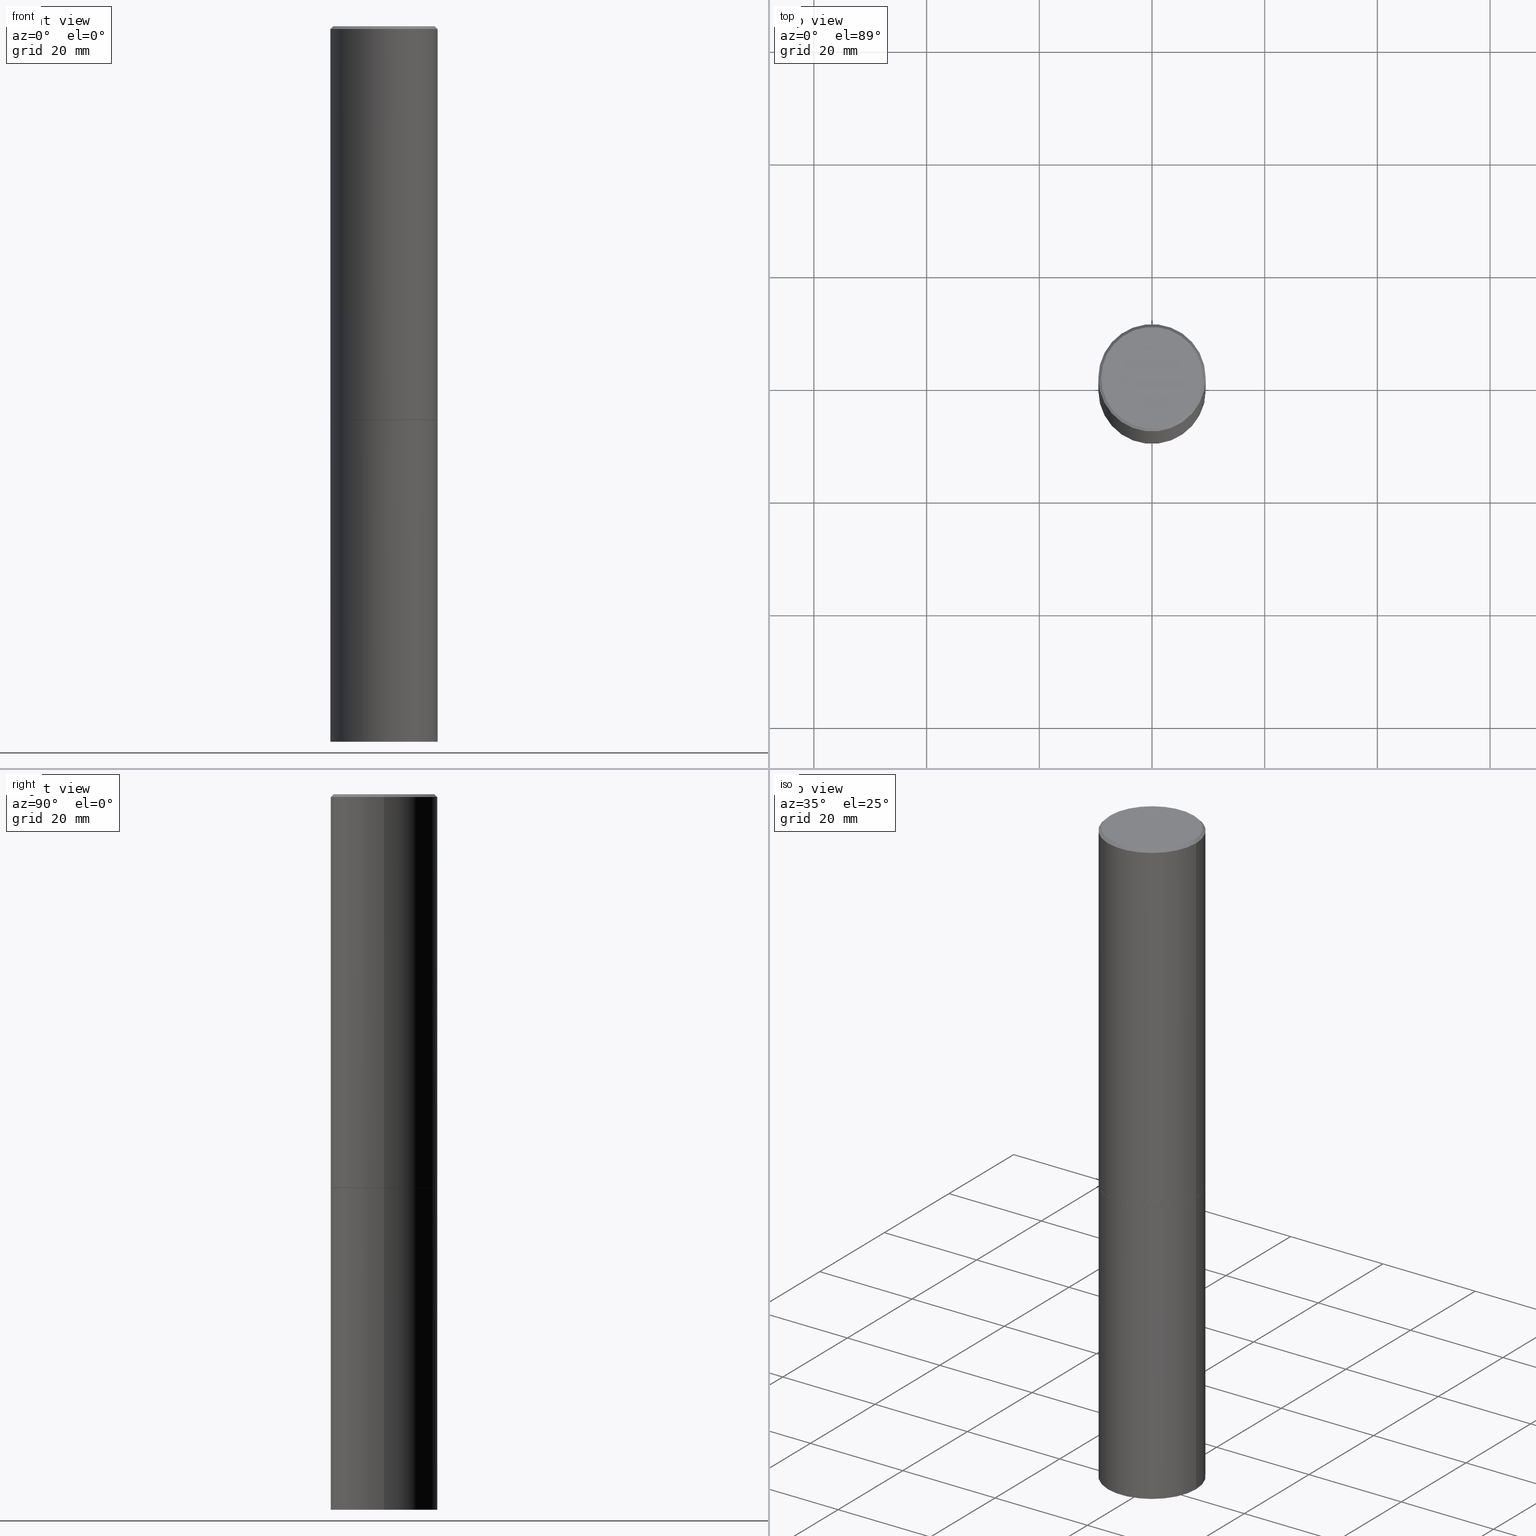
[diagram: canonical four-view strip — front | top / right | iso, engineering-drawing reading convention]
A machine part, canonical four-view strip (front | top / right | iso — engineering-drawing reading convention). The complete STEP part file that produces these views, byte-faithful:
ISO-10303-21;
HEADER;
FILE_DESCRIPTION (( 'STEP AP203' ),
    '1' );
FILE_NAME ('31818.STEP',
    '2024-02-27T13:42:31',
    ( '' ),
    ( '' ),
    'SwSTEP 2.0',
    'SolidWorks 2023',
    '' );
FILE_SCHEMA (( 'CONFIG_CONTROL_DESIGN' ));
ENDSEC;

DATA;
#1 = ADVANCED_FACE ( 'NONE', ( #116 ), #283, .F. ) ;
#2 = PLANE ( 'NONE',  #184 ) ;
#3 = DIRECTION ( 'NONE',  ( -2.445468806185136597E-29, 3.491481338843145583E-15, 1.000000000000000000 ) ) ;
#4 = AXIS2_PLACEMENT_3D ( 'NONE', #246, #24, #251 ) ;
#5 = DIRECTION ( 'NONE',  ( 1.000000000000000000, -6.982962677686265922E-15, 4.876176775795935793E-29 ) ) ;
#6 = CALENDAR_DATE ( 2024, 27, 2 ) ;
#7 = ADVANCED_FACE ( 'NONE', ( #58 ), #148, .T. ) ;
#8 = APPLICATION_PROTOCOL_DEFINITION ( 'international standard', 'config_control_design', 1994, #314 ) ;
#9 = APPROVAL_PERSON_ORGANIZATION ( #200, #166, #60 ) ;
#10 = ADVANCED_FACE ( 'NONE', ( #303 ), #55, .F. ) ;
#11 = DIRECTION ( 'NONE',  ( 1.000000000000000000, -6.982962677686269077E-15, 0.000000000000000000 ) ) ;
#12 = ORIENTED_EDGE ( 'NONE', *, *, #151, .T. ) ;
#13 = ADVANCED_FACE ( 'NONE', ( #170 ), #2, .T. ) ;
#14 = DIRECTION ( 'NONE',  ( 0.7071067811865469066, -7.319954787623254468E-15, -0.7071067811865481278 ) ) ;
#15 = ORIENTED_EDGE ( 'NONE', *, *, #299, .T. ) ;
#16 = DIRECTION ( 'NONE',  ( 1.000000000000000000, -6.982962677686265922E-15, 4.876176775795935793E-29 ) ) ;
#17 = EDGE_LOOP ( 'NONE', ( #152, #223, #12, #275 ) ) ;
#18 = CLOSED_SHELL ( 'NONE', ( #23, #350, #130, #7, #310, #62, #47, #10 ) ) ;
#19 = LINE ( 'NONE', #241, #32 ) ;
#20 = APPROVAL_DATE_TIME ( #272, #230 ) ;
#21 = VERTEX_POINT ( 'NONE', #305 ) ;
#22 = CARTESIAN_POINT ( 'NONE',  ( 6.722593748202941159E-29, -9.598082200479808430E-15, -2.749000000000000110 ) ) ;
#23 = ADVANCED_FACE ( 'NONE', ( #85 ), #171, .T. ) ;
#24 = DIRECTION ( 'NONE',  ( -2.445468806185136597E-29, 3.491481338843145583E-15, 1.000000000000000000 ) ) ;
#25 = ORIENTED_EDGE ( 'NONE', *, *, #147, .F. ) ;
#26 = CARTESIAN_POINT ( 'NONE',  ( -0.3749999999999999445, -2.169420654527958195E-15, -2.749000000000000110 ) ) ;
#27 = AXIS2_PLACEMENT_3D ( 'NONE', #365, #221, #333 ) ;
#28 = DIRECTION ( 'NONE',  ( 2.438088387897960049E-29, -3.491481338843145188E-15, -1.000000000000000000 ) ) ;
#29 = CARTESIAN_POINT ( 'NONE',  ( 0.3750000000000000555, -1.222018468595100145E-14, -2.750000000000000000 ) ) ;
#30 = DIRECTION ( 'NONE',  ( -1.000000000000000000, 6.982962677686265922E-15, -4.876176775795935793E-29 ) ) ;
#31 = CARTESIAN_POINT ( 'NONE',  ( 0.000000000000000000, 0.000000000000000000, 0.000000000000000000 ) ) ;
#32 = VECTOR ( 'NONE', #79, 39.37007874015748143 ) ;
#33 = LOCAL_TIME ( 8, 42, 31.00000000000000000, #167 ) ;
#34 =( CONVERSION_BASED_UNIT ( 'INCH', #127 ) LENGTH_UNIT ( ) NAMED_UNIT ( #135 ) );
#35 = DATE_AND_TIME ( #93, #178 ) ;
#36 = ORIENTED_EDGE ( 'NONE', *, *, #191, .T. ) ;
#37 = EDGE_CURVE ( 'NONE', #193, #129, #113, .T. ) ;
#38 = ORIENTED_EDGE ( 'NONE', *, *, #317, .F. ) ;
#39 = AXIS2_PLACEMENT_3D ( 'NONE', #282, #250, #279 ) ;
#40 = CC_DESIGN_APPROVAL ( #343, ( #219 ) ) ;
#41 = CARTESIAN_POINT ( 'NONE',  ( 6.725039217009124520E-29, -9.601573681818649859E-15, -2.750000000000000000 ) ) ;
#42 = EDGE_LOOP ( 'NONE', ( #359, #139, #327, #206 ) ) ;
#43 = CARTESIAN_POINT ( 'NONE',  ( 0.3749999999999998335, -2.618611004132348439E-15, 1.828566290923475082E-29 ) ) ;
#44 = CARTESIAN_POINT ( 'NONE',  ( 0.3749999999999996669, -2.642516375941185662E-15, -0.02000000000000008715 ) ) ;
#45 = VERTEX_POINT ( 'NONE', #308 ) ;
#46 = VECTOR ( 'NONE', #207, 39.37007874015748143 ) ;
#47 = ADVANCED_FACE ( 'NONE', ( #131 ), #358, .F. ) ;
#48 = CIRCLE ( 'NONE', #255, 0.3750000000000000555 ) ;
#49 = FACE_OUTER_BOUND ( 'NONE', #42, .T. ) ;
#50 = ORIENTED_EDGE ( 'NONE', *, *, #97, .T. ) ;
#51 = FACE_OUTER_BOUND ( 'NONE', #353, .T. ) ;
#52 = SHAPE_DEFINITION_REPRESENTATION ( #117, #302 ) ;
#53 = PERSON_AND_ORGANIZATION ( #309, #156 ) ;
#54 = DIRECTION ( 'NONE',  ( 1.000000000000000000, -6.982962677686265922E-15, 4.876176775795935793E-29 ) ) ;
#55 = PLANE ( 'NONE',  #180 ) ;
#56 = EDGE_CURVE ( 'NONE', #232, #217, #161, .T. ) ;
#57 = LOCAL_TIME ( 8, 42, 31.00000000000000000, #249 ) ;
#58 = FACE_OUTER_BOUND ( 'NONE', #134, .T. ) ;
#59 = DIRECTION ( 'NONE',  ( 1.000000000000000000, -6.982962677686265133E-15, 0.000000000000000000 ) ) ;
#60 = APPROVAL_ROLE ( '' ) ;
#61 = UNCERTAINTY_MEASURE_WITH_UNIT (LENGTH_MEASURE( 1.000000000000000082E-05 ), #34, 'distance_accuracy_value', 'NONE');
#62 = ADVANCED_FACE ( 'NONE', ( #49 ), #103, .T. ) ;
#63 = VECTOR ( 'NONE', #187, 39.37007874015748143 ) ;
#64 = CONICAL_SURFACE ( 'NONE', #271, 0.3749999999999996669, 0.7853981633974473908 ) ;
#65 = EDGE_CURVE ( 'NONE', #45, #217, #234, .T. ) ;
#66 = EDGE_LOOP ( 'NONE', ( #111, #356 ) ) ;
#67 = CARTESIAN_POINT ( 'NONE',  ( 1.222734403092568523E-28, -1.745740669421572989E-14, -5.000000000000000000 ) ) ;
#68 = ORIENTED_EDGE ( 'NONE', *, *, #75, .F. ) ;
#69 = AXIS2_PLACEMENT_3D ( 'NONE', #336, #169, #59 ) ;
#70 = DIRECTION ( 'NONE',  ( 1.000000000000000000, -6.982962677686266711E-15, 0.000000000000000000 ) ) ;
#71 = APPROVAL_STATUS ( 'not_yet_approved' ) ;
#72 = ORIENTED_EDGE ( 'NONE', *, *, #216, .F. ) ;
#73 = CARTESIAN_POINT ( 'NONE',  ( -0.3739999999999999991, -6.944143850075873593E-15, -2.749999999999999556 ) ) ;
#74 = ORIENTED_EDGE ( 'NONE', *, *, #258, .F. ) ;
#75 = EDGE_CURVE ( 'NONE', #108, #232, #347, .T. ) ;
#76 = DIRECTION ( 'NONE',  ( -2.445468806185136597E-29, 3.491481338843145583E-15, 1.000000000000000000 ) ) ;
#77 = DATE_AND_TIME ( #263, #57 ) ;
#78 = EDGE_LOOP ( 'NONE', ( #136, #190 ) ) ;
#79 = DIRECTION ( 'NONE',  ( 0.7071067811867889352, -2.468850131084785360E-15, 0.7071067811863060992 ) ) ;
#80 = EDGE_LOOP ( 'NONE', ( #50, #265, #72, #235 ) ) ;
#81 = APPROVAL_DATE_TIME ( #35, #166 ) ;
#82 = CC_DESIGN_DATE_AND_TIME_ASSIGNMENT ( #239, #105, ( #96 ) ) ;
#83 = CARTESIAN_POINT ( 'NONE',  ( 4.890937612370294178E-31, -6.982962677686321191E-17, -0.02000000000000008715 ) ) ;
#84 = DIRECTION ( 'NONE',  ( -2.445468806185136597E-29, 3.491481338843145583E-15, 1.000000000000000000 ) ) ;
#85 = FACE_OUTER_BOUND ( 'NONE', #247, .T. ) ;
#86 = FACE_OUTER_BOUND ( 'NONE', #80, .T. ) ;
#87 = AXIS2_PLACEMENT_3D ( 'NONE', #338, #88, #198 ) ;
#88 = DIRECTION ( 'NONE',  ( -2.445468806185136597E-29, 3.491481338843145583E-15, 1.000000000000000000 ) ) ;
#89 = CARTESIAN_POINT ( 'NONE',  ( -0.3739999999999999991, -6.938845395727652768E-15, -2.749999999999999556 ) ) ;
#90 =( NAMED_UNIT ( * ) PLANE_ANGLE_UNIT ( ) SI_UNIT ( $, .RADIAN. ) );
#91 = ADVANCED_FACE ( 'NONE', ( #100 ), #357, .T. ) ;
#92 = AXIS2_PLACEMENT_3D ( 'NONE', #361, #118, #196 ) ;
#93 = CALENDAR_DATE ( 2024, 27, 2 ) ;
#94 = MANIFOLD_SOLID_BREP ( 'Body-Move/Copy2[1]', #339 ) ;
#95 = CIRCLE ( 'NONE', #163, 0.3749999999999996669 ) ;
#96 = SECURITY_CLASSIFICATION ( '', '', #324 ) ;
#97 = EDGE_CURVE ( 'NONE', #45, #329, #137, .T. ) ;
#98 = LINE ( 'NONE', #205, #154 ) ;
#99 = EDGE_LOOP ( 'NONE', ( #325, #277, #74, #173 ) ) ;
#100 = FACE_OUTER_BOUND ( 'NONE', #99, .T. ) ;
#101 = PERSON_AND_ORGANIZATION ( #309, #156 ) ;
#102 = EDGE_LOOP ( 'NONE', ( #158, #245 ) ) ;
#103 = CONICAL_SURFACE ( 'NONE', #286, 0.3739999999999999991, 0.7853981633977896726 ) ;
#104 = FACE_OUTER_BOUND ( 'NONE', #269, .T. ) ;
#105 = DATE_TIME_ROLE ( 'classification_date' ) ;
#106 = ORIENTED_EDGE ( 'NONE', *, *, #285, .F. ) ;
#107 = DIRECTION ( 'NONE',  ( -2.445468806185136597E-29, 3.491481338843145583E-15, 1.000000000000000000 ) ) ;
#108 = VERTEX_POINT ( 'NONE', #328 ) ;
#109 = CARTESIAN_POINT ( 'NONE',  ( -0.3749999999999996669, 2.548781377355484352E-15, -0.02000000000000008715 ) ) ;
#110 = PERSON_AND_ORGANIZATION ( #309, #156 ) ;
#111 = ORIENTED_EDGE ( 'NONE', *, *, #75, .T. ) ;
#112 = EDGE_CURVE ( 'NONE', #329, #132, #98, .T. ) ;
#113 = CIRCLE ( 'NONE', #87, 0.3750000000000000555 ) ;
#114 = AXIS2_PLACEMENT_3D ( 'NONE', #257, #121, #5 ) ;
#115 = LINE ( 'NONE', #199, #290 ) ;
#116 = FACE_OUTER_BOUND ( 'NONE', #78, .T. ) ;
#117 = PRODUCT_DEFINITION_SHAPE ( 'NONE', 'NONE',  #313 ) ;
#118 = DIRECTION ( 'NONE',  ( -2.445468806185136597E-29, 3.491481338843145583E-15, 1.000000000000000000 ) ) ;
#119 = CARTESIAN_POINT ( 'NONE',  ( 2.478951750578621842E-15, 0.3549999999999996492, -1.235207362799214833E-15 ) ) ;
#120 = DIRECTION ( 'NONE',  ( 1.000000000000000000, -6.982962677686265133E-15, 0.000000000000000000 ) ) ;
#121 = DIRECTION ( 'NONE',  ( -2.445468806185136597E-29, 3.491481338843145583E-15, 1.000000000000000000 ) ) ;
#122 = CIRCLE ( 'NONE', #315, 0.3750000000000000555 ) ;
#123 = EDGE_CURVE ( 'NONE', #193, #210, #295, .T. ) ;
#124 = FACE_OUTER_BOUND ( 'NONE', #17, .T. ) ;
#125 = PERSON_AND_ORGANIZATION ( #309, #156 ) ;
#126 =( LENGTH_UNIT ( ) NAMED_UNIT ( * ) SI_UNIT ( $, .METRE. ) );
#127 = LENGTH_MEASURE_WITH_UNIT ( LENGTH_MEASURE( 0.02539999999999999897 ), #126 );
#128 = AXIS2_PLACEMENT_3D ( 'NONE', #41, #293, #298 ) ;
#129 = VERTEX_POINT ( 'NONE', #243 ) ;
#130 = ADVANCED_FACE ( 'NONE', ( #104 ), #64, .T. ) ;
#131 = FACE_OUTER_BOUND ( 'NONE', #155, .T. ) ;
#132 = VERTEX_POINT ( 'NONE', #109 ) ;
#133 = CARTESIAN_POINT ( 'NONE',  ( 0.000000000000000000, 0.000000000000000000, 0.000000000000000000 ) ) ;
#134 = EDGE_LOOP ( 'NONE', ( #185, #68, #294, #15 ) ) ;
#135 = DIMENSIONAL_EXPONENTS ( 1.000000000000000000, 0.000000000000000000, 0.000000000000000000, 0.000000000000000000, 0.000000000000000000, 0.000000000000000000, 0.000000000000000000 ) ;
#136 = ORIENTED_EDGE ( 'NONE', *, *, #258, .T. ) ;
#137 = CIRCLE ( 'NONE', #225, 0.3749999999999999445 ) ;
#138 = DIRECTION ( 'NONE',  ( -1.000000000000000000, 6.982962677686266711E-15, 0.000000000000000000 ) ) ;
#139 = ORIENTED_EDGE ( 'NONE', *, *, #317, .T. ) ;
#140 = CARTESIAN_POINT ( 'NONE',  ( 4.890937612370294178E-31, -6.982962677686321191E-17, -0.02000000000000008715 ) ) ;
#141 = APPLICATION_PROTOCOL_DEFINITION ( 'international standard', 'config_control_design', 1994, #254 ) ;
#142 = DATE_TIME_ROLE ( 'creation_date' ) ;
#143 = DIRECTION ( 'NONE',  ( 1.000000000000000000, -6.982962677686266711E-15, 0.000000000000000000 ) ) ;
#144 = DIRECTION ( 'NONE',  ( 2.438088387897960049E-29, -3.491481338843145188E-15, -1.000000000000000000 ) ) ;
#145 = CARTESIAN_POINT ( 'NONE',  ( 6.725039217009124520E-29, -9.601573681818649859E-15, -2.750000000000000000 ) ) ;
#146 = CARTESIAN_POINT ( 'NONE',  ( 6.725039217009123399E-29, -9.601573681818648281E-15, -2.749999999999999556 ) ) ;
#147 = EDGE_CURVE ( 'NONE', #21, #45, #19, .T. ) ;
#148 = CONICAL_SURFACE ( 'NONE', #312, 0.3749999999999996669, 0.7853981633974473908 ) ;
#149 = CC_DESIGN_APPROVAL ( #230, ( #96 ) ) ;
#150 =( NAMED_UNIT ( * ) SI_UNIT ( $, .STERADIAN. ) SOLID_ANGLE_UNIT ( ) );
#151 = EDGE_CURVE ( 'NONE', #129, #349, #319, .T. ) ;
#152 = ORIENTED_EDGE ( 'NONE', *, *, #123, .F. ) ;
#153 = DIRECTION ( 'NONE',  ( 1.000000000000000000, -6.982962677686265133E-15, 0.000000000000000000 ) ) ;
#154 = VECTOR ( 'NONE', #354, 39.37007874015748143 ) ;
#155 = EDGE_LOOP ( 'NONE', ( #162, #38 ) ) ;
#156 = ORGANIZATION ( 'UNSPECIFIED', 'UNSPECIFIED', '' ) ;
#157 = CARTESIAN_POINT ( 'NONE',  ( -0.3750000000000000555, -1.086495492891681496E-14, -5.000000000000000000 ) ) ;
#158 = ORIENTED_EDGE ( 'NONE', *, *, #174, .F. ) ;
#159 = CC_DESIGN_PERSON_AND_ORGANIZATION_ASSIGNMENT ( #101, #209, ( #219 ) ) ;
#160 = DIRECTION ( 'NONE',  ( 1.000000000000000000, -6.982962677686265922E-15, 4.876231632511992667E-29 ) ) ;
#161 = LINE ( 'NONE', #44, #306 ) ;
#162 = ORIENTED_EDGE ( 'NONE', *, *, #346, .F. ) ;
#163 = AXIS2_PLACEMENT_3D ( 'NONE', #351, #321, #70 ) ;
#164 = CARTESIAN_POINT ( 'NONE',  ( -2.087702828670439639E-46, 2.980686340760894400E-32, 8.537024980200822558E-18 ) ) ;
#165 = DIRECTION ( 'NONE',  ( 1.000000000000000000, -6.982962677686265922E-15, 4.876176775795935793E-29 ) ) ;
#166 = APPROVAL ( #331, 'UNSPECIFIED' ) ;
#167 = COORDINATED_UNIVERSAL_TIME_OFFSET ( 5, 0, .BEHIND. ) ;
#168 = APPROVAL_STATUS ( 'not_yet_approved' ) ;
#169 = DIRECTION ( 'NONE',  ( -2.445468806185136597E-29, 3.491481338843145583E-15, 1.000000000000000000 ) ) ;
#170 = FACE_OUTER_BOUND ( 'NONE', #102, .T. ) ;
#171 = CONICAL_SURFACE ( 'NONE', #208, 0.3739999999999999991, 0.7853981633977896726 ) ;
#172 = CARTESIAN_POINT ( 'NONE',  ( 6.725039217009124520E-29, -9.601573681818649859E-15, -2.750000000000000000 ) ) ;
#173 = ORIENTED_EDGE ( 'NONE', *, *, #151, .F. ) ;
#174 = EDGE_CURVE ( 'NONE', #129, #193, #122, .T. ) ;
#175 = DIRECTION ( 'NONE',  ( -0.7071067811865469066, 2.468850131082250355E-15, -0.7071067811865481278 ) ) ;
#176 = PERSON_AND_ORGANIZATION ( #309, #156 ) ;
#177 = VECTOR ( 'NONE', #291, 39.37007874015748143 ) ;
#178 = LOCAL_TIME ( 8, 42, 31.00000000000000000, #344 ) ;
#179 = MECHANICAL_CONTEXT ( 'NONE', #314, 'mechanical' ) ;
#180 = AXIS2_PLACEMENT_3D ( 'NONE', #119, #28, #30 ) ;
#181 = PRODUCT_RELATED_PRODUCT_CATEGORY ( 'detail', '', ( #342 ) ) ;
#182 = ORIENTED_EDGE ( 'NONE', *, *, #299, .F. ) ;
#183 = DIRECTION ( 'NONE',  ( 1.000000000000000000, -6.982962677686266711E-15, 0.000000000000000000 ) ) ;
#184 = AXIS2_PLACEMENT_3D ( 'NONE', #280, #144, #335 ) ;
#185 = ORIENTED_EDGE ( 'NONE', *, *, #56, .F. ) ;
#186 = AXIS2_PLACEMENT_3D ( 'NONE', #311, #260, #261 ) ;
#187 = DIRECTION ( 'NONE',  ( -2.445468806185136877E-29, 3.491481338843145188E-15, 1.000000000000000000 ) ) ;
#188 = CARTESIAN_POINT ( 'NONE',  ( 0.3749999999999996669, -2.642516375941185662E-15, -0.02000000000000008715 ) ) ;
#189 = APPROVAL_ROLE ( '' ) ;
#190 = ORIENTED_EDGE ( 'NONE', *, *, #289, .T. ) ;
#191 = EDGE_CURVE ( 'NONE', #237, #329, #214, .T. ) ;
#192 = APPROVAL_DATE_TIME ( #77, #343 ) ;
#193 = VERTEX_POINT ( 'NONE', #157 ) ;
#194 = COORDINATED_UNIVERSAL_TIME_OFFSET ( 5, 0, .BEHIND. ) ;
#195 = DIRECTION ( 'NONE',  ( 2.445468806185136597E-29, -3.491481338843145583E-15, -1.000000000000000000 ) ) ;
#196 = DIRECTION ( 'NONE',  ( 1.000000000000000000, -6.982962677686265922E-15, 4.876231632511992667E-29 ) ) ;
#197 = CYLINDRICAL_SURFACE ( 'NONE', #114, 0.3749999999999998335 ) ;
#198 = DIRECTION ( 'NONE',  ( 1.000000000000000000, -6.982962677686266711E-15, 0.000000000000000000 ) ) ;
#199 = CARTESIAN_POINT ( 'NONE',  ( -0.3749999999999996669, 2.548781377355484352E-15, -0.02000000000000008715 ) ) ;
#200 = PERSON_AND_ORGANIZATION ( #309, #156 ) ;
#201 = CC_DESIGN_PERSON_AND_ORGANIZATION_ASSIGNMENT ( #244, #352, ( #219 ) ) ;
#202 = DIRECTION ( 'NONE',  ( -2.445468806185136597E-29, 3.491481338843145583E-15, 1.000000000000000000 ) ) ;
#203 = CIRCLE ( 'NONE', #4, 0.3749999999999999445 ) ;
#204 = AXIS2_PLACEMENT_3D ( 'NONE', #172, #276, #143 ) ;
#205 = CARTESIAN_POINT ( 'NONE',  ( -0.3749999999999998335, 2.664535259100374514E-15, -1.844600658845588757E-29 ) ) ;
#206 = ORIENTED_EDGE ( 'NONE', *, *, #222, .F. ) ;
#207 = DIRECTION ( 'NONE',  ( -2.445468806185136877E-29, 3.491481338843145188E-15, 1.000000000000000000 ) ) ;
#208 = AXIS2_PLACEMENT_3D ( 'NONE', #146, #252, #120 ) ;
#209 = PERSON_AND_ORGANIZATION_ROLE ( 'design_supplier' ) ;
#210 = VERTEX_POINT ( 'NONE', #236 ) ;
#211 = CC_DESIGN_SECURITY_CLASSIFICATION ( #96, ( #219 ) ) ;
#212 = CARTESIAN_POINT ( 'NONE',  ( 0.3750000000000000555, -2.618611004132350016E-15, 1.828566290923476203E-29 ) ) ;
#213 = PERSON_AND_ORGANIZATION ( #309, #156 ) ;
#214 = LINE ( 'NONE', #73, #177 ) ;
#215 = ORIENTED_EDGE ( 'NONE', *, *, #284, .F. ) ;
#216 = EDGE_CURVE ( 'NONE', #217, #132, #95, .T. ) ;
#217 = VERTEX_POINT ( 'NONE', #188 ) ;
#218 = AXIS2_PLACEMENT_3D ( 'NONE', #31, #253, #54 ) ;
#219 = PRODUCT_DEFINITION_FORMATION_WITH_SPECIFIED_SOURCE ( 'ANY', '', #342, .NOT_KNOWN. ) ;
#220 = CYLINDRICAL_SURFACE ( 'NONE', #218, 0.3749999999999998335 ) ;
#221 = DIRECTION ( 'NONE',  ( 2.438088387897960049E-29, -3.491481338843145188E-15, -1.000000000000000000 ) ) ;
#222 = EDGE_CURVE ( 'NONE', #329, #45, #203, .T. ) ;
#223 = ORIENTED_EDGE ( 'NONE', *, *, #37, .T. ) ;
#224 = DIRECTION ( 'NONE',  ( 1.000000000000000000, -6.982962677686265133E-15, 0.000000000000000000 ) ) ;
#225 = AXIS2_PLACEMENT_3D ( 'NONE', #22, #348, #11 ) ;
#226 = CYLINDRICAL_SURFACE ( 'NONE', #355, 0.3750000000000000555 ) ;
#227 = CC_DESIGN_PERSON_AND_ORGANIZATION_ASSIGNMENT ( #125, #228, ( #342 ) ) ;
#228 = PERSON_AND_ORGANIZATION_ROLE ( 'design_owner' ) ;
#229 = CIRCLE ( 'NONE', #69, 0.3739999999999999991 ) ;
#230 = APPROVAL ( #71, 'UNSPECIFIED' ) ;
#231 = CIRCLE ( 'NONE', #204, 0.3750000000000000555 ) ;
#232 = VERTEX_POINT ( 'NONE', #334 ) ;
#233 = CC_DESIGN_PERSON_AND_ORGANIZATION_ASSIGNMENT ( #176, #259, ( #313 ) ) ;
#234 = LINE ( 'NONE', #43, #63 ) ;
#235 = ORIENTED_EDGE ( 'NONE', *, *, #65, .F. ) ;
#236 = CARTESIAN_POINT ( 'NONE',  ( -0.3750000000000000555, -1.086495492891681496E-14, -2.750000000000000000 ) ) ;
#237 = VERTEX_POINT ( 'NONE', #89 ) ;
#238 = DIRECTION ( 'NONE',  ( -2.445468806185136597E-29, 3.491481338843145583E-15, 1.000000000000000000 ) ) ;
#239 = DATE_AND_TIME ( #266, #363 ) ;
#240 = ORIENTED_EDGE ( 'NONE', *, *, #222, .T. ) ;
#241 = CARTESIAN_POINT ( 'NONE',  ( 0.3739999999999999991, -1.221320172327331228E-14, -2.749999999999999556 ) ) ;
#242 = CC_DESIGN_PERSON_AND_ORGANIZATION_ASSIGNMENT ( #213, #332, ( #96 ) ) ;
#243 = CARTESIAN_POINT ( 'NONE',  ( 0.3750000000000000555, -2.007601769834807990E-14, -5.000000000000000000 ) ) ;
#244 = PERSON_AND_ORGANIZATION ( #309, #156 ) ;
#245 = ORIENTED_EDGE ( 'NONE', *, *, #37, .F. ) ;
#246 = CARTESIAN_POINT ( 'NONE',  ( 6.722593748202941159E-29, -9.598082200479808430E-15, -2.749000000000000110 ) ) ;
#247 = EDGE_LOOP ( 'NONE', ( #267, #36, #288, #25 ) ) ;
#248 = CIRCLE ( 'NONE', #345, 0.3739999999999999991 ) ;
#249 = COORDINATED_UNIVERSAL_TIME_OFFSET ( 5, 0, .BEHIND. ) ;
#250 = DIRECTION ( 'NONE',  ( -2.445468806185136597E-29, 3.491481338843145583E-15, 1.000000000000000000 ) ) ;
#251 = DIRECTION ( 'NONE',  ( 1.000000000000000000, -6.982962677686269077E-15, 0.000000000000000000 ) ) ;
#252 = DIRECTION ( 'NONE',  ( -2.445468806185136597E-29, 3.491481338843145583E-15, 1.000000000000000000 ) ) ;
#253 = DIRECTION ( 'NONE',  ( -2.445468806185136597E-29, 3.491481338843145583E-15, 1.000000000000000000 ) ) ;
#254 = APPLICATION_CONTEXT ( 'configuration controlled 3d designs of mechanical parts and assemblies' ) ;
#255 = AXIS2_PLACEMENT_3D ( 'NONE', #145, #84, #304 ) ;
#256 = CIRCLE ( 'NONE', #92, 0.3549999999999996492 ) ;
#257 = CARTESIAN_POINT ( 'NONE',  ( 0.000000000000000000, 0.000000000000000000, 0.000000000000000000 ) ) ;
#258 = EDGE_CURVE ( 'NONE', #349, #210, #231, .T. ) ;
#259 = PERSON_AND_ORGANIZATION_ROLE ( 'creator' ) ;
#260 = DIRECTION ( 'NONE',  ( 0.000000000000000000, 0.000000000000000000, 1.000000000000000000 ) ) ;
#261 = DIRECTION ( 'NONE',  ( 1.000000000000000000, 0.000000000000000000, 0.000000000000000000 ) ) ;
#262 = AXIS2_PLACEMENT_3D ( 'NONE', #133, #238, #16 ) ;
#263 = CALENDAR_DATE ( 2024, 27, 2 ) ;
#264 = ORIENTED_EDGE ( 'NONE', *, *, #112, .F. ) ;
#265 = ORIENTED_EDGE ( 'NONE', *, *, #112, .T. ) ;
#266 = CALENDAR_DATE ( 2024, 27, 2 ) ;
#267 = ORIENTED_EDGE ( 'NONE', *, *, #346, .T. ) ;
#268 = CARTESIAN_POINT ( 'NONE',  ( -0.3750000000000000555, 2.664535259100376091E-15, -1.844600658845589598E-29 ) ) ;
#269 = EDGE_LOOP ( 'NONE', ( #215, #273, #320, #106 ) ) ;
#270 = DIRECTION ( 'NONE',  ( -2.445468806185136597E-29, 3.491481338843145583E-15, 1.000000000000000000 ) ) ;
#271 = AXIS2_PLACEMENT_3D ( 'NONE', #140, #292, #138 ) ;
#272 = DATE_AND_TIME ( #364, #33 ) ;
#273 = ORIENTED_EDGE ( 'NONE', *, *, #56, .T. ) ;
#274 = CARTESIAN_POINT ( 'NONE',  ( 6.725039217009123399E-29, -9.601573681818648281E-15, -2.749999999999999556 ) ) ;
#275 = ORIENTED_EDGE ( 'NONE', *, *, #289, .F. ) ;
#276 = DIRECTION ( 'NONE',  ( -2.445468806185136597E-29, 3.491481338843145583E-15, 1.000000000000000000 ) ) ;
#277 = ORIENTED_EDGE ( 'NONE', *, *, #123, .T. ) ;
#278 = APPROVAL_ROLE ( '' ) ;
#279 = DIRECTION ( 'NONE',  ( 1.000000000000000000, -6.982962677686266711E-15, 0.000000000000000000 ) ) ;
#280 = CARTESIAN_POINT ( 'NONE',  ( 2.618611004132472290E-15, 0.3749999999999825695, -5.000000000000000888 ) ) ;
#281 = CC_DESIGN_APPROVAL ( #166, ( #313 ) ) ;
#282 = CARTESIAN_POINT ( 'NONE',  ( 4.890937612370294178E-31, -6.982962677686321191E-17, -0.02000000000000008715 ) ) ;
#283 = PLANE ( 'NONE',  #27 ) ;
#284 = EDGE_CURVE ( 'NONE', #232, #108, #256, .T. ) ;
#285 = EDGE_CURVE ( 'NONE', #108, #132, #115, .T. ) ;
#286 = AXIS2_PLACEMENT_3D ( 'NONE', #274, #76, #153 ) ;
#287 = DESIGN_CONTEXT ( 'detailed design', #254, 'design' ) ;
#288 = ORIENTED_EDGE ( 'NONE', *, *, #97, .F. ) ;
#289 = EDGE_CURVE ( 'NONE', #210, #349, #48, .T. ) ;
#290 = VECTOR ( 'NONE', #175, 39.37007874015748143 ) ;
#291 = DIRECTION ( 'NONE',  ( -0.7071067811867889352, 7.493145998871226640E-15, 0.7071067811863060992 ) ) ;
#292 = DIRECTION ( 'NONE',  ( 2.445468806185136597E-29, -3.491481338843145583E-15, -1.000000000000000000 ) ) ;
#293 = DIRECTION ( 'NONE',  ( -2.438088387897960049E-29, 3.491481338843145188E-15, 1.000000000000000000 ) ) ;
#294 = ORIENTED_EDGE ( 'NONE', *, *, #285, .T. ) ;
#295 = LINE ( 'NONE', #268, #330 ) ;
#296 = CIRCLE ( 'NONE', #39, 0.3749999999999996669 ) ;
#297 = DIRECTION ( 'NONE',  ( -1.000000000000000000, 6.982962677686266711E-15, 0.000000000000000000 ) ) ;
#298 = DIRECTION ( 'NONE',  ( 1.000000000000000000, -6.982962677686265922E-15, 4.876176775795935793E-29 ) ) ;
#299 = EDGE_CURVE ( 'NONE', #132, #217, #296, .T. ) ;
#300 = COORDINATED_UNIVERSAL_TIME_OFFSET ( 5, 0, .BEHIND. ) ;
#301 = DATE_AND_TIME ( #6, #322 ) ;
#302 = ADVANCED_BREP_SHAPE_REPRESENTATION ( '31818', ( #94, #337, #186 ), #307 ) ;
#303 = FACE_OUTER_BOUND ( 'NONE', #66, .T. ) ;
#304 = DIRECTION ( 'NONE',  ( 1.000000000000000000, -6.982962677686266711E-15, 0.000000000000000000 ) ) ;
#305 = CARTESIAN_POINT ( 'NONE',  ( 0.3739999999999999991, -1.221320172327331228E-14, -2.749999999999999556 ) ) ;
#306 = VECTOR ( 'NONE', #14, 39.37007874015748143 ) ;
#307 =( GEOMETRIC_REPRESENTATION_CONTEXT ( 3 ) GLOBAL_UNCERTAINTY_ASSIGNED_CONTEXT ( ( #61 ) ) GLOBAL_UNIT_ASSIGNED_CONTEXT ( ( #34, #90, #150 ) ) REPRESENTATION_CONTEXT ( 'NONE', 'WORKASPACE' ) );
#308 = CARTESIAN_POINT ( 'NONE',  ( 0.3749999999999999445, -1.221669320461215845E-14, -2.749000000000000110 ) ) ;
#309 = PERSON ( 'UNSPECIFIED', 'UNSPECIFIED', 'UNSPECIFIED', ('UNSPECIFIED'), ('UNSPECIFIED'), ('UNSPECIFIED') ) ;
#310 = ADVANCED_FACE ( 'NONE', ( #51 ), #220, .T. ) ;
#311 = CARTESIAN_POINT ( 'NONE',  ( 0.000000000000000000, 0.000000000000000000, 0.000000000000000000 ) ) ;
#312 = AXIS2_PLACEMENT_3D ( 'NONE', #83, #195, #297 ) ;
#313 = PRODUCT_DEFINITION ( 'UNKNOWN', '', #219, #287 ) ;
#314 = APPLICATION_CONTEXT ( 'configuration controlled 3d designs of mechanical parts and assemblies' ) ;
#315 = AXIS2_PLACEMENT_3D ( 'NONE', #67, #107, #183 ) ;
#316 = APPROVAL_PERSON_ORGANIZATION ( #110, #230, #189 ) ;
#317 = EDGE_CURVE ( 'NONE', #237, #21, #248, .T. ) ;
#318 = ORIENTED_EDGE ( 'NONE', *, *, #65, .T. ) ;
#319 = LINE ( 'NONE', #212, #46 ) ;
#320 = ORIENTED_EDGE ( 'NONE', *, *, #216, .T. ) ;
#321 = DIRECTION ( 'NONE',  ( -2.445468806185136597E-29, 3.491481338843145583E-15, 1.000000000000000000 ) ) ;
#322 = LOCAL_TIME ( 8, 42, 31.00000000000000000, #194 ) ;
#323 = CC_DESIGN_DATE_AND_TIME_ASSIGNMENT ( #301, #142, ( #313 ) ) ;
#324 = SECURITY_CLASSIFICATION_LEVEL ( 'unclassified' ) ;
#325 = ORIENTED_EDGE ( 'NONE', *, *, #174, .T. ) ;
#326 = DIRECTION ( 'NONE',  ( -2.445468806185136877E-29, 3.491481338843145188E-15, 1.000000000000000000 ) ) ;
#327 = ORIENTED_EDGE ( 'NONE', *, *, #147, .T. ) ;
#328 = CARTESIAN_POINT ( 'NONE',  ( -0.3549999999999996492, 2.513866563967053097E-15, 8.537024980183364388E-18 ) ) ;
#329 = VERTEX_POINT ( 'NONE', #26 ) ;
#330 = VECTOR ( 'NONE', #326, 39.37007874015748143 ) ;
#331 = APPROVAL_STATUS ( 'not_yet_approved' ) ;
#332 = PERSON_AND_ORGANIZATION_ROLE ( 'classification_officer' ) ;
#333 = DIRECTION ( 'NONE',  ( -1.000000000000000000, 6.982962677686265922E-15, -4.876176775795935793E-29 ) ) ;
#334 = CARTESIAN_POINT ( 'NONE',  ( 0.3549999999999996492, -2.538996582575038287E-15, 8.537024980218368550E-18 ) ) ;
#335 = DIRECTION ( 'NONE',  ( -1.000000000000000000, 6.982962677686265922E-15, -4.876176775795935793E-29 ) ) ;
#336 = CARTESIAN_POINT ( 'NONE',  ( 6.725039217009123399E-29, -9.601573681818648281E-15, -2.749999999999999556 ) ) ;
#337 = MANIFOLD_SOLID_BREP ( 'Body-Move/Copy2[2]', #18 ) ;
#338 = CARTESIAN_POINT ( 'NONE',  ( 1.222734403092568523E-28, -1.745740669421572989E-14, -5.000000000000000000 ) ) ;
#339 = CLOSED_SHELL ( 'NONE', ( #91, #13, #1, #360 ) ) ;
#340 = APPROVAL_PERSON_ORGANIZATION ( #53, #343, #278 ) ;
#341 = CARTESIAN_POINT ( 'NONE',  ( 0.000000000000000000, 0.000000000000000000, 0.000000000000000000 ) ) ;
#342 = PRODUCT ( '31818', '31818', '', ( #179 ) ) ;
#343 = APPROVAL ( #168, 'UNSPECIFIED' ) ;
#344 = COORDINATED_UNIVERSAL_TIME_OFFSET ( 5, 0, .BEHIND. ) ;
#345 = AXIS2_PLACEMENT_3D ( 'NONE', #366, #3, #224 ) ;
#346 = EDGE_CURVE ( 'NONE', #21, #237, #229, .T. ) ;
#347 = CIRCLE ( 'NONE', #362, 0.3549999999999996492 ) ;
#348 = DIRECTION ( 'NONE',  ( -2.445468806185136597E-29, 3.491481338843145583E-15, 1.000000000000000000 ) ) ;
#349 = VERTEX_POINT ( 'NONE', #29 ) ;
#350 = ADVANCED_FACE ( 'NONE', ( #86 ), #197, .T. ) ;
#351 = CARTESIAN_POINT ( 'NONE',  ( 4.890937612370294178E-31, -6.982962677686321191E-17, -0.02000000000000008715 ) ) ;
#352 = PERSON_AND_ORGANIZATION_ROLE ( 'creator' ) ;
#353 = EDGE_LOOP ( 'NONE', ( #264, #240, #318, #182 ) ) ;
#354 = DIRECTION ( 'NONE',  ( -2.445468806185136877E-29, 3.491481338843145188E-15, 1.000000000000000000 ) ) ;
#355 = AXIS2_PLACEMENT_3D ( 'NONE', #341, #202, #165 ) ;
#356 = ORIENTED_EDGE ( 'NONE', *, *, #284, .T. ) ;
#357 = CYLINDRICAL_SURFACE ( 'NONE', #262, 0.3750000000000000555 ) ;
#358 = PLANE ( 'NONE',  #128 ) ;
#359 = ORIENTED_EDGE ( 'NONE', *, *, #191, .F. ) ;
#360 = ADVANCED_FACE ( 'NONE', ( #124 ), #226, .T. ) ;
#361 = CARTESIAN_POINT ( 'NONE',  ( -2.087702828670439639E-46, 2.980686340760894400E-32, 8.537024980200822558E-18 ) ) ;
#362 = AXIS2_PLACEMENT_3D ( 'NONE', #164, #270, #160 ) ;
#363 = LOCAL_TIME ( 8, 42, 31.00000000000000000, #300 ) ;
#364 = CALENDAR_DATE ( 2024, 27, 2 ) ;
#365 = CARTESIAN_POINT ( 'NONE',  ( 2.618611004132417464E-15, 0.3749999999999903966, -2.750000000000000888 ) ) ;
#366 = CARTESIAN_POINT ( 'NONE',  ( 6.725039217009123399E-29, -9.601573681818648281E-15, -2.749999999999999556 ) ) ;
ENDSEC;
END-ISO-10303-21;
